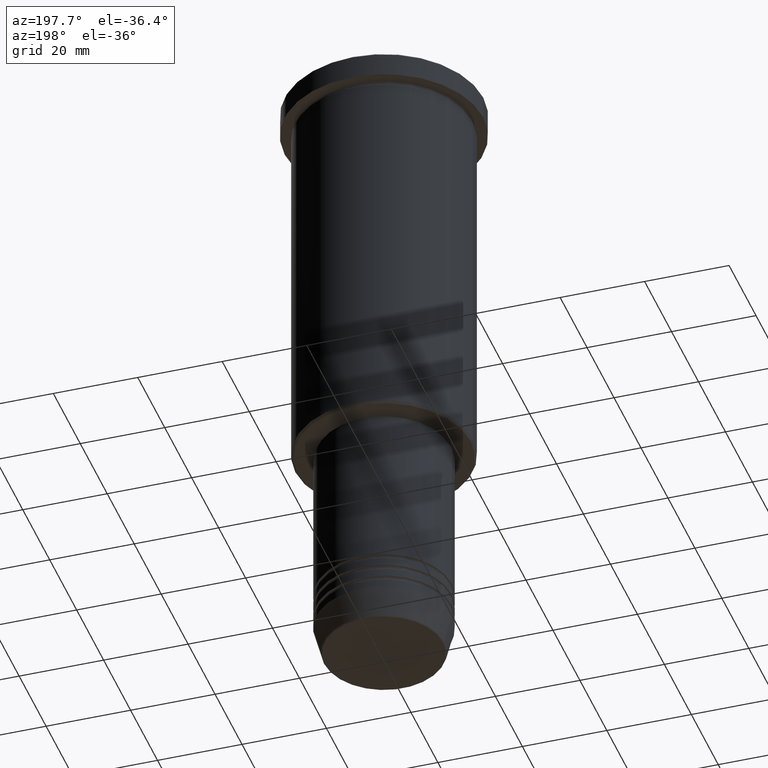
[diagram: clean part render]
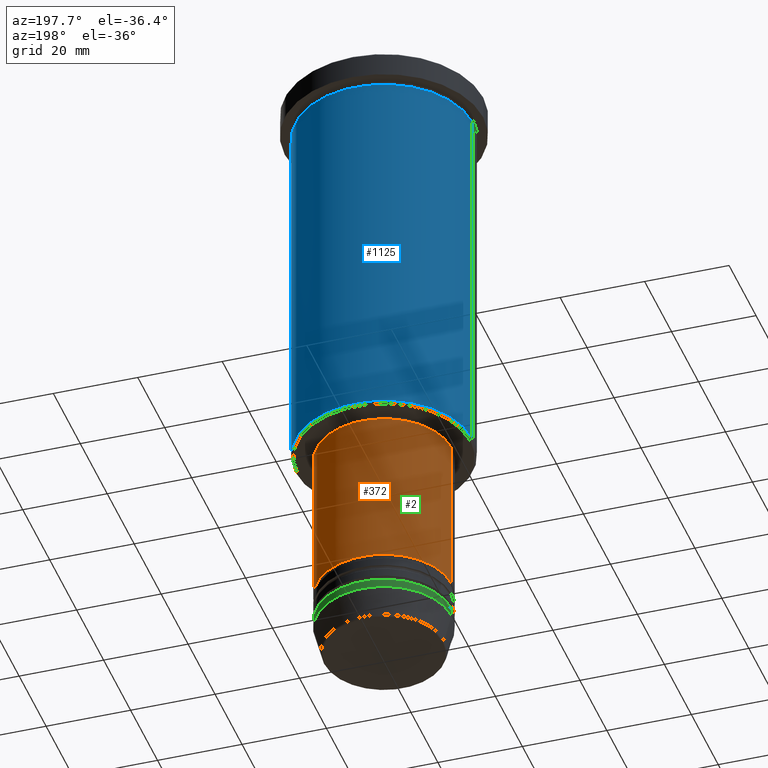
[diagram: same view with three faces highlighted in distinct colors, each labeled with its STEP entity id]
A machine part, auxiliary view with three faces highlighted in distinct colors.
Their STEP definitions:

[orange] entity #372 — the highlighted cylindrical surface (partial cylindrical patch) has radius 16 mm, axis along (-0, -0, 1).
#42 = DIRECTION ( 'NONE',  ( 1.000000000000000000, 0.000000000000000000, 0.000000000000000000 ) ) ;
#46 = EDGE_CURVE ( 'NONE', #673, #305, #1064, .T. ) ;
#60 = CARTESIAN_POINT ( 'NONE',  ( 16.00000000000000000, 0.000000000000000000, 0.000000000000000000 ) ) ;
#89 = CARTESIAN_POINT ( 'NONE',  ( -16.00000000000000000, 1.959434878635765131E-15, -134.9999999999999716 ) ) ;
#192 = CARTESIAN_POINT ( 'NONE',  ( 0.000000000000000000, 0.000000000000000000, -97.00000000000000000 ) ) ;
#193 = DIRECTION ( 'NONE',  ( 1.000000000000000000, 0.000000000000000000, 0.000000000000000000 ) ) ;
#245 = DIRECTION ( 'NONE',  ( -0.000000000000000000, -0.000000000000000000, 1.000000000000000000 ) ) ;
#264 = LINE ( 'NONE', #990, #1153 ) ;
#272 = ORIENTED_EDGE ( 'NONE', *, *, #631, .T. ) ;
#301 = CIRCLE ( 'NONE', #431, 16.00000000000000000 ) ;
#305 = VERTEX_POINT ( 'NONE', #720 ) ;
#360 = DIRECTION ( 'NONE',  ( -0.000000000000000000, -0.000000000000000000, 1.000000000000000000 ) ) ;
#372 = ADVANCED_FACE ( 'NONE', ( #744 ), #916, .T. ) ;
#389 = DIRECTION ( 'NONE',  ( -0.000000000000000000, -0.000000000000000000, 1.000000000000000000 ) ) ;
#397 = ORIENTED_EDGE ( 'NONE', *, *, #46, .F. ) ;
#431 = AXIS2_PLACEMENT_3D ( 'NONE', #918, #360, #193 ) ;
#442 = VECTOR ( 'NONE', #245, 1000.000000000000000 ) ;
#479 = EDGE_LOOP ( 'NONE', ( #1157, #272, #1036, #397 ) ) ;
#631 = EDGE_CURVE ( 'NONE', #1096, #1112, #264, .T. ) ;
#634 = CARTESIAN_POINT ( 'NONE',  ( -16.00000000000000000, 1.959434878635765131E-15, -97.00000000000000000 ) ) ;
#657 = DIRECTION ( 'NONE',  ( -0.000000000000000000, -0.000000000000000000, 1.000000000000000000 ) ) ;
#673 = VERTEX_POINT ( 'NONE', #831 ) ;
#720 = CARTESIAN_POINT ( 'NONE',  ( 16.00000000000000000, 0.000000000000000000, -97.00000000000000000 ) ) ;
#744 = FACE_OUTER_BOUND ( 'NONE', #479, .T. ) ;
#790 = EDGE_CURVE ( 'NONE', #305, #1112, #877, .T. ) ;
#824 = CARTESIAN_POINT ( 'NONE',  ( 0.000000000000000000, 0.000000000000000000, 0.000000000000000000 ) ) ;
#831 = CARTESIAN_POINT ( 'NONE',  ( 16.00000000000000000, 0.000000000000000000, -134.9999999999999716 ) ) ;
#838 = AXIS2_PLACEMENT_3D ( 'NONE', #824, #389, #1118 ) ;
#877 = CIRCLE ( 'NONE', #1026, 16.00000000000000000 ) ;
#916 = CYLINDRICAL_SURFACE ( 'NONE', #838, 16.00000000000000000 ) ;
#918 = CARTESIAN_POINT ( 'NONE',  ( 0.000000000000000000, 0.000000000000000000, -134.9999999999999716 ) ) ;
#990 = CARTESIAN_POINT ( 'NONE',  ( -16.00000000000000000, 1.959434878635765131E-15, 0.000000000000000000 ) ) ;
#1026 = AXIS2_PLACEMENT_3D ( 'NONE', #192, #657, #42 ) ;
#1036 = ORIENTED_EDGE ( 'NONE', *, *, #790, .F. ) ;
#1047 = EDGE_CURVE ( 'NONE', #673, #1096, #301, .T. ) ;
#1064 = LINE ( 'NONE', #60, #442 ) ;
#1096 = VERTEX_POINT ( 'NONE', #89 ) ;
#1112 = VERTEX_POINT ( 'NONE', #634 ) ;
#1118 = DIRECTION ( 'NONE',  ( 1.000000000000000000, 0.000000000000000000, 0.000000000000000000 ) ) ;
#1153 = VECTOR ( 'NONE', #1174, 1000.000000000000000 ) ;
#1157 = ORIENTED_EDGE ( 'NONE', *, *, #1047, .T. ) ;
#1174 = DIRECTION ( 'NONE',  ( -0.000000000000000000, -0.000000000000000000, 1.000000000000000000 ) ) ;

[blue] entity #1125 — the highlighted cylindrical surface (partial cylindrical patch) has radius 21 mm, axis along (-0, -0, 1).
#25 = CARTESIAN_POINT ( 'NONE',  ( 21.00000000000000000, 0.000000000000000000, -95.50000000000002842 ) ) ;
#53 = EDGE_CURVE ( 'NONE', #507, #97, #732, .T. ) ;
#58 = EDGE_CURVE ( 'NONE', #507, #713, #886, .T. ) ;
#85 = DIRECTION ( 'NONE',  ( -0.000000000000000000, -0.000000000000000000, 1.000000000000000000 ) ) ;
#87 = VERTEX_POINT ( 'NONE', #560 ) ;
#97 = VERTEX_POINT ( 'NONE', #378 ) ;
#106 = ORIENTED_EDGE ( 'NONE', *, *, #58, .T. ) ;
#116 = CARTESIAN_POINT ( 'NONE',  ( 0.000000000000000000, 0.000000000000000000, -6.999999999999994671 ) ) ;
#166 = EDGE_CURVE ( 'NONE', #97, #87, #219, .T. ) ;
#168 = FACE_OUTER_BOUND ( 'NONE', #1044, .T. ) ;
#219 = CIRCLE ( 'NONE', #247, 21.00000000000000000 ) ;
#247 = AXIS2_PLACEMENT_3D ( 'NONE', #116, #774, #669 ) ;
#270 = CARTESIAN_POINT ( 'NONE',  ( 0.000000000000000000, 0.000000000000000000, 0.000000000000000000 ) ) ;
#378 = CARTESIAN_POINT ( 'NONE',  ( 21.00000000000000000, 0.000000000000000000, -6.999999999999994671 ) ) ;
#449 = DIRECTION ( 'NONE',  ( 1.000000000000000000, 0.000000000000000000, 0.000000000000000000 ) ) ;
#507 = VERTEX_POINT ( 'NONE', #25 ) ;
#545 = CARTESIAN_POINT ( 'NONE',  ( 21.00000000000000000, 0.000000000000000000, 0.000000000000000000 ) ) ;
#546 = CYLINDRICAL_SURFACE ( 'NONE', #1084, 21.00000000000000000 ) ;
#552 = CARTESIAN_POINT ( 'NONE',  ( 0.000000000000000000, 0.000000000000000000, -95.50000000000002842 ) ) ;
#560 = CARTESIAN_POINT ( 'NONE',  ( -21.00000000000000000, 2.571758278209441661E-15, -6.999999999999994671 ) ) ;
#669 = DIRECTION ( 'NONE',  ( 1.000000000000000000, 0.000000000000000000, 0.000000000000000000 ) ) ;
#713 = VERTEX_POINT ( 'NONE', #777 ) ;
#731 = ORIENTED_EDGE ( 'NONE', *, *, #1040, .T. ) ;
#732 = LINE ( 'NONE', #545, #1061 ) ;
#774 = DIRECTION ( 'NONE',  ( -0.000000000000000000, -0.000000000000000000, 1.000000000000000000 ) ) ;
#777 = CARTESIAN_POINT ( 'NONE',  ( -21.00000000000000000, 2.571758278209441661E-15, -95.50000000000002842 ) ) ;
#791 = ORIENTED_EDGE ( 'NONE', *, *, #166, .F. ) ;
#829 = DIRECTION ( 'NONE',  ( -0.000000000000000000, -0.000000000000000000, 1.000000000000000000 ) ) ;
#872 = ORIENTED_EDGE ( 'NONE', *, *, #53, .F. ) ;
#886 = CIRCLE ( 'NONE', #976, 21.00000000000000000 ) ;
#902 = DIRECTION ( 'NONE',  ( -1.000000000000000000, 0.000000000000000000, 0.000000000000000000 ) ) ;
#910 = DIRECTION ( 'NONE',  ( -0.000000000000000000, -0.000000000000000000, 1.000000000000000000 ) ) ;
#950 = VECTOR ( 'NONE', #829, 1000.000000000000000 ) ;
#976 = AXIS2_PLACEMENT_3D ( 'NONE', #552, #910, #902 ) ;
#1040 = EDGE_CURVE ( 'NONE', #713, #87, #1108, .T. ) ;
#1044 = EDGE_LOOP ( 'NONE', ( #106, #731, #791, #872 ) ) ;
#1061 = VECTOR ( 'NONE', #1091, 1000.000000000000000 ) ;
#1084 = AXIS2_PLACEMENT_3D ( 'NONE', #270, #85, #449 ) ;
#1091 = DIRECTION ( 'NONE',  ( -0.000000000000000000, -0.000000000000000000, 1.000000000000000000 ) ) ;
#1108 = LINE ( 'NONE', #1177, #950 ) ;
#1125 = ADVANCED_FACE ( 'NONE', ( #168 ), #546, .T. ) ;
#1177 = CARTESIAN_POINT ( 'NONE',  ( -21.00000000000000000, 2.571758278209441661E-15, 0.000000000000000000 ) ) ;

[green] entity #2 — the highlighted cylindrical surface (partial cylindrical patch) has radius 16 mm, axis along (-0, -0, 1).
#2 = ADVANCED_FACE ( 'NONE', ( #157 ), #536, .T. ) ;
#18 = VERTEX_POINT ( 'NONE', #690 ) ;
#55 = LINE ( 'NONE', #693, #903 ) ;
#142 = EDGE_CURVE ( 'NONE', #1115, #376, #467, .T. ) ;
#157 = FACE_OUTER_BOUND ( 'NONE', #452, .T. ) ;
#205 = ORIENTED_EDGE ( 'NONE', *, *, #585, .T. ) ;
#208 = CARTESIAN_POINT ( 'NONE',  ( -16.00000000000000000, 1.959434878635765131E-15, -142.0000000000000284 ) ) ;
#232 = DIRECTION ( 'NONE',  ( 1.000000000000000000, 0.000000000000000000, 0.000000000000000000 ) ) ;
#258 = CARTESIAN_POINT ( 'NONE',  ( 0.000000000000000000, 0.000000000000000000, -144.0000000000000284 ) ) ;
#259 = EDGE_CURVE ( 'NONE', #921, #1115, #55, .T. ) ;
#316 = VECTOR ( 'NONE', #805, 1000.000000000000000 ) ;
#324 = DIRECTION ( 'NONE',  ( -0.000000000000000000, -0.000000000000000000, 1.000000000000000000 ) ) ;
#376 = VERTEX_POINT ( 'NONE', #208 ) ;
#395 = AXIS2_PLACEMENT_3D ( 'NONE', #687, #324, #232 ) ;
#412 = DIRECTION ( 'NONE',  ( -0.000000000000000000, -0.000000000000000000, 1.000000000000000000 ) ) ;
#429 = CIRCLE ( 'NONE', #928, 16.00000000000000000 ) ;
#452 = EDGE_LOOP ( 'NONE', ( #591, #205, #515, #555 ) ) ;
#467 = CIRCLE ( 'NONE', #735, 16.00000000000000000 ) ;
#515 = ORIENTED_EDGE ( 'NONE', *, *, #142, .F. ) ;
#527 = LINE ( 'NONE', #890, #316 ) ;
#536 = CYLINDRICAL_SURFACE ( 'NONE', #395, 16.00000000000000000 ) ;
#555 = ORIENTED_EDGE ( 'NONE', *, *, #259, .F. ) ;
#583 = DIRECTION ( 'NONE',  ( 1.000000000000000000, 0.000000000000000000, 0.000000000000000000 ) ) ;
#585 = EDGE_CURVE ( 'NONE', #18, #376, #527, .T. ) ;
#591 = ORIENTED_EDGE ( 'NONE', *, *, #873, .T. ) ;
#618 = DIRECTION ( 'NONE',  ( -0.000000000000000000, -0.000000000000000000, 1.000000000000000000 ) ) ;
#638 = CARTESIAN_POINT ( 'NONE',  ( 16.00000000000000000, 0.000000000000000000, -142.0000000000000284 ) ) ;
#687 = CARTESIAN_POINT ( 'NONE',  ( 0.000000000000000000, 0.000000000000000000, 0.000000000000000000 ) ) ;
#690 = CARTESIAN_POINT ( 'NONE',  ( -16.00000000000000000, 1.959434878635765131E-15, -144.0000000000000284 ) ) ;
#693 = CARTESIAN_POINT ( 'NONE',  ( 16.00000000000000000, 0.000000000000000000, 0.000000000000000000 ) ) ;
#735 = AXIS2_PLACEMENT_3D ( 'NONE', #1142, #412, #583 ) ;
#793 = DIRECTION ( 'NONE',  ( -0.000000000000000000, -0.000000000000000000, 1.000000000000000000 ) ) ;
#805 = DIRECTION ( 'NONE',  ( -0.000000000000000000, -0.000000000000000000, 1.000000000000000000 ) ) ;
#873 = EDGE_CURVE ( 'NONE', #921, #18, #429, .T. ) ;
#890 = CARTESIAN_POINT ( 'NONE',  ( -16.00000000000000000, 1.959434878635765131E-15, 0.000000000000000000 ) ) ;
#903 = VECTOR ( 'NONE', #793, 1000.000000000000000 ) ;
#921 = VERTEX_POINT ( 'NONE', #952 ) ;
#928 = AXIS2_PLACEMENT_3D ( 'NONE', #258, #618, #1041 ) ;
#952 = CARTESIAN_POINT ( 'NONE',  ( 16.00000000000000000, 0.000000000000000000, -144.0000000000000284 ) ) ;
#1041 = DIRECTION ( 'NONE',  ( 1.000000000000000000, 0.000000000000000000, 0.000000000000000000 ) ) ;
#1115 = VERTEX_POINT ( 'NONE', #638 ) ;
#1142 = CARTESIAN_POINT ( 'NONE',  ( 0.000000000000000000, 0.000000000000000000, -142.0000000000000284 ) ) ;